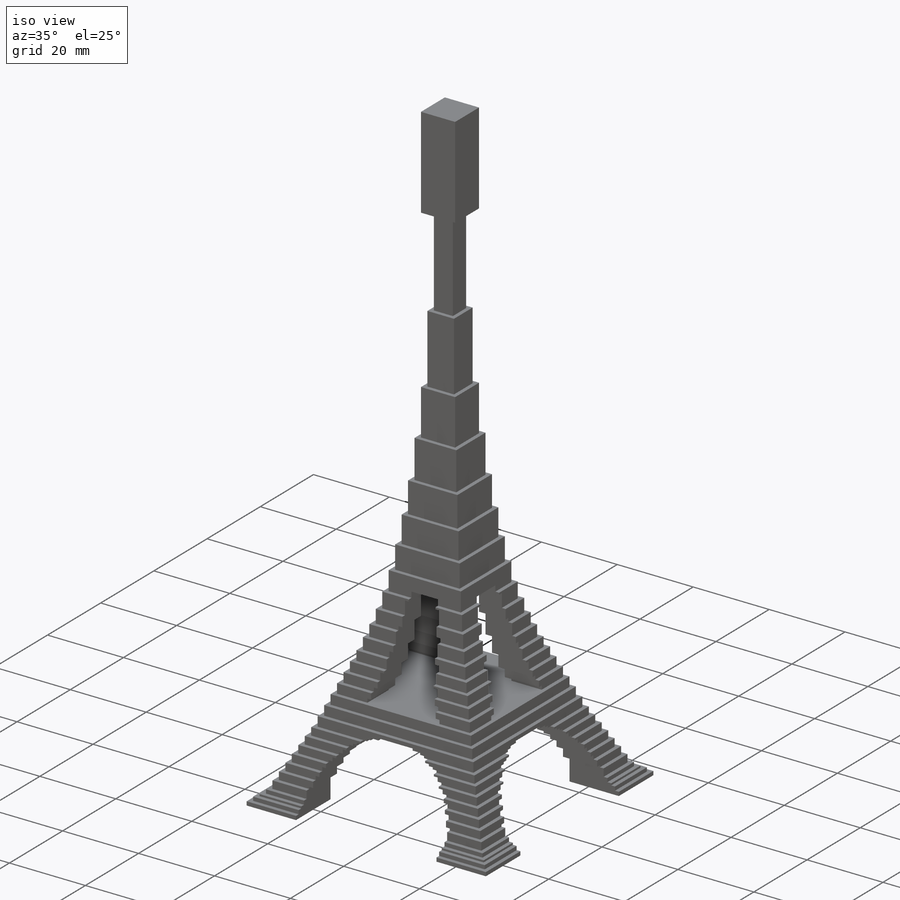
[diagram: iso view]
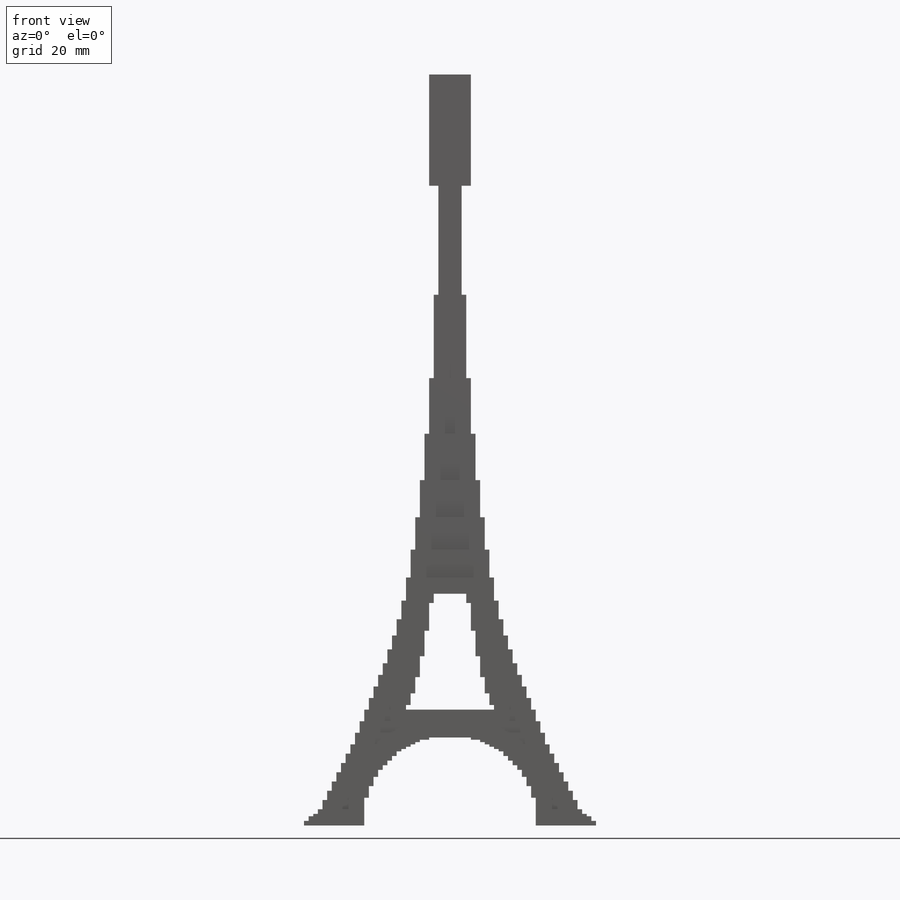
[diagram: front view]
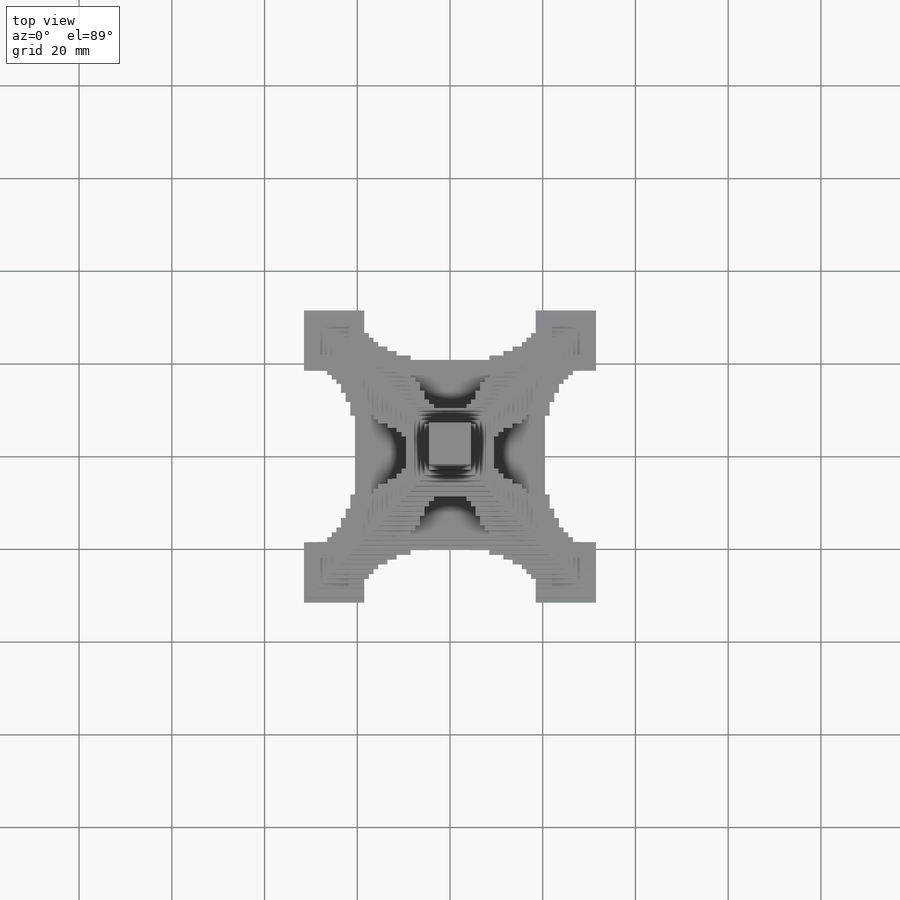
[diagram: top view]
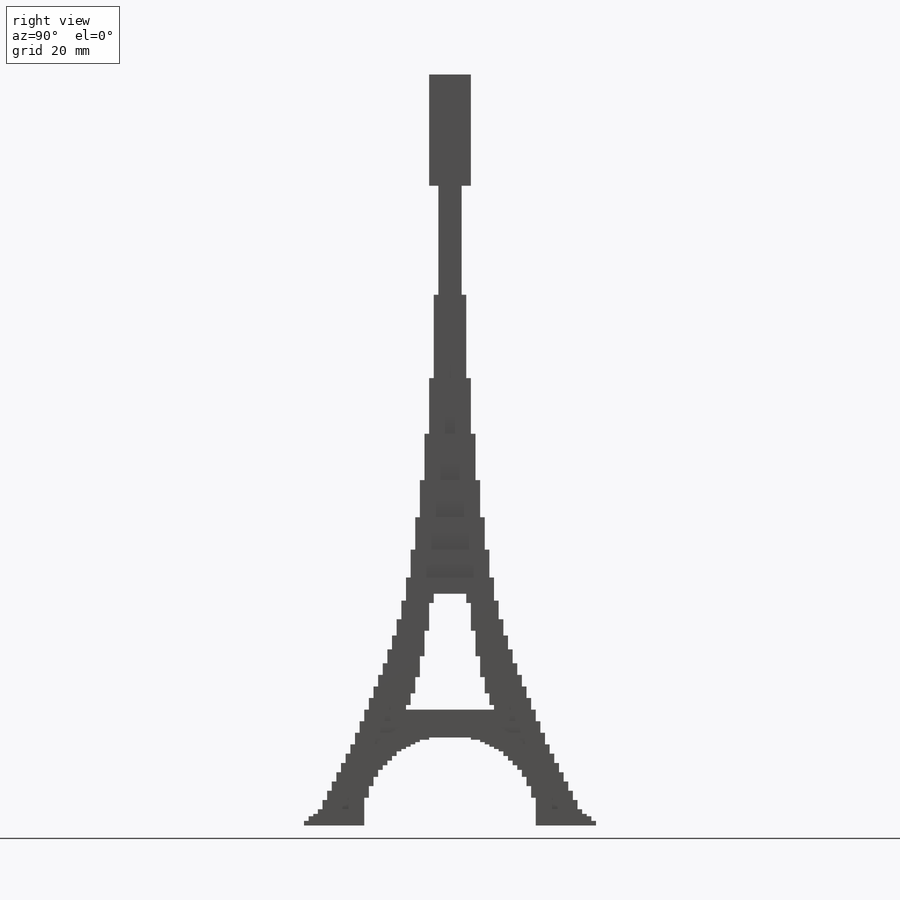
[diagram: right view]
SOLIDWORKS PART (.sldprt)
format: sldprt  version: not decoded by parser v0  size: 766,976 bytes
history: native  units: mm
features: sketch x6, plane x3, cut_extrude x3, material x1, extrude x1, mirror x1, pattern_circular x1 (+9 scaffold rows collapsed)
feature tree (25):
  scaffold x9  (default folders/planes/origin — collapsed)
  material  "Material <nicht festgelegt>"
  plane  "Ebene vorne"
  plane  "Ebene oben"
  plane  "Ebene rechts"
  sketch  "Skizze1"  dims[c1.D11=10.0mm c1.D1=162.0mm c1.D2=37.0mm c1.D3=63.0mm c1.D4=29.0mm c1.D5=58.0mm c1.D6=138.0mm c1.D7=33.0mm c1.D8=17.0mm c1.D9=5.0mm c1.D10=59.0mm c2.D11=80.0mm c2.D12=5.0mm c2.D13=17.0mm c2.D14=43.0mm]
  sketch  "Skizze3"  dims[D1=~26.836537mm]
  sketch  "Skizze2"  dims[D1=~160.977724mm D2=~69.296433mm]
  extrude  "Aufsatz-Linear austragen1"  [1 undecoded]
  sketch  "Skizze4"  dims[c1.D1=6.0mm c1.D2=1.0mm c1.D3=2.5mm c1.D4=2.0mm c1.D5=19.0mm c1.D6=1.5mm c1.D7=1.0mm c1.D8=1.0mm c1.D9=1.0mm c1.D10=1.0mm c1.D11=0.5mm c1.D12=0.5mm c1.D13=0.5mm c1.D14=~2.341421mm c2.D12=4.5mm c2.D13=2.0mm c2.D14=1.0mm]
  cut_extrude  "Schnitt-Linear austragen2"  [1 undecoded]
  sketch  "Skizze5"  dims[c1.D1=3.5mm c1.D2=25.0mm c1.D3=25.0mm c1.D4=9.5mm c1.D5=1.0mm c2.D1=3.5mm c2.D6=1.0mm c2.D7=2.5mm c2.D8=3.5mm c2.D9=4.5mm c2.D10=5.5mm c2.D11=6.0mm]
  cut_extrude  "Schnitt-Linear austragen3"  [1 undecoded]
  sketch  "Skizze6"  dims[D1=4.5mm D2=1.0mm D3=1.0mm D4=1.0mm D5=0.5mm D6=1.0mm D7=2.0mm D8=2.0mm D9=2.0mm D10=2.0mm D11=2.0mm D12=2.0mm D13=2.0mm D14=2.5mm D15=2.5mm D16=2.5mm D17=2.5mm D18=2.5mm D19=2.5mm D20=2.5mm D21=3.0mm D22=3.0mm D23=3.5mm D24=4.0mm D25=5.0mm D26=6.0mm D27=7.0mm D28=8.0mm D29=10.0mm D30=12.0mm D31=18.0mm]
  cut_extrude  "Schnitt-Linear austragen4"  [1 undecoded]
  mirror  "Spiegeln1"
  pattern_circular  "Kreismuster1"  Count=4 Angle=360deg
decode coverage: 7 of 12 modeling features carry decoded parameters
note: ~ marks probable driven/reference dimensions
note: 4 parameter values undecoded
summary: no parameter record found for 4 features
note: suppression state not decoded; provenance and decode notes live in map.json
